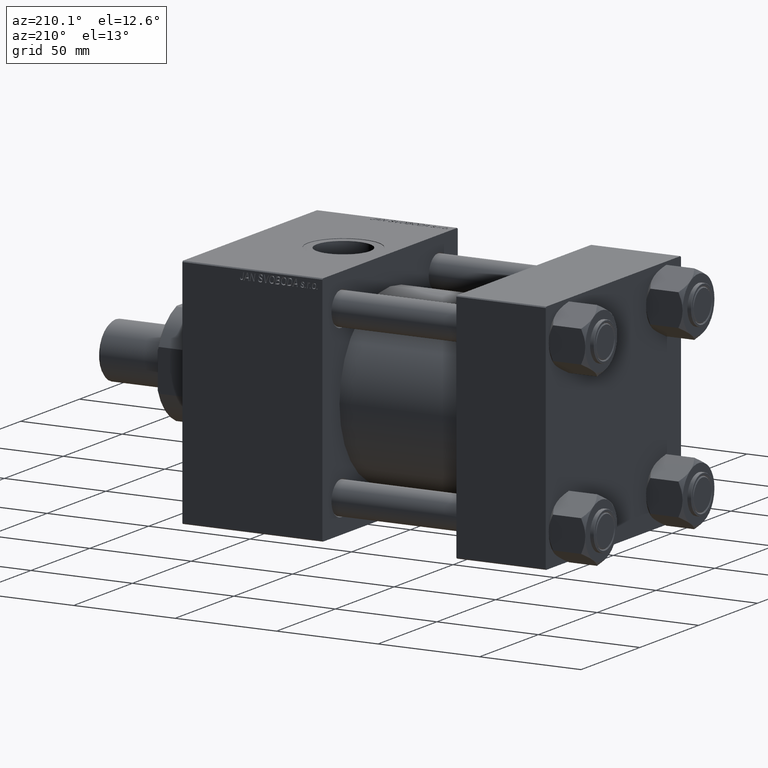
[diagram: clean part render]
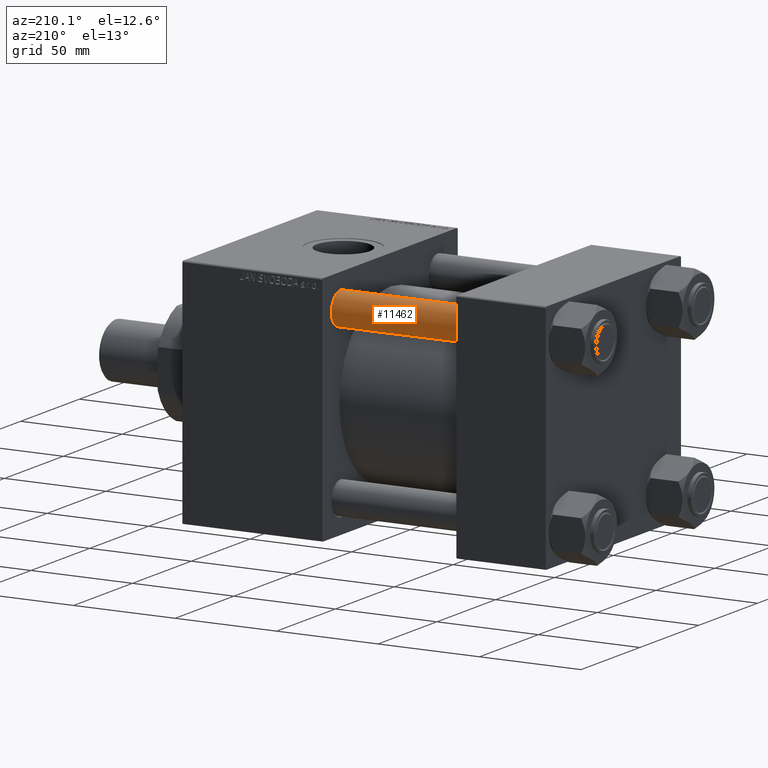
[diagram: same view with one face highlighted and labeled with its STEP entity id]
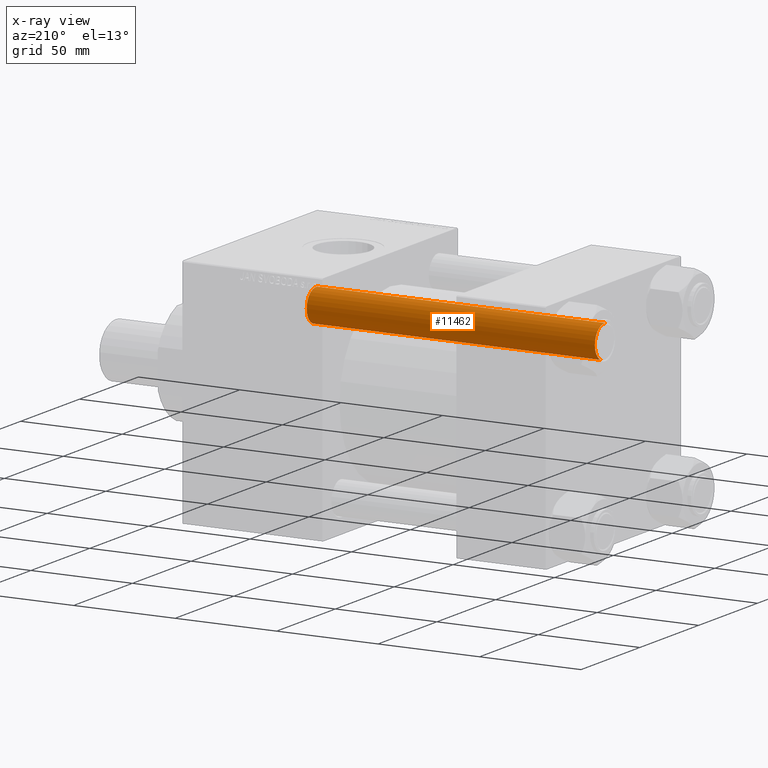
[diagram: x-ray of the same camera — body ghosted, the highlighted face saturated]
A machine part, auxiliary view. The second image highlights one B-rep face of the part: STEP entity #11462.
The next image is the same camera in x-ray: the body ghosted, the highlighted face saturated — about 0% of this face is hidden behind the body in this view.
In plain terms, the highlighted cylindrical surface (edge-blend (fillet) strip) has radius 8 mm, axis along (-1, 0, 0).
Its self-contained STEP definition (entity closure, byte-faithful):
#874 = LINE ( 'NONE', #40022, #41013 ) ;
#2196 = VERTEX_POINT ( 'NONE', #24660 ) ;
#3321 = EDGE_CURVE ( 'NONE', #35190, #48510, #10177, .T. ) ;
#4856 = DIRECTION ( 'NONE',  ( 1.000000000000000000, 0.000000000000000000, 0.000000000000000000 ) ) ;
#6298 = CARTESIAN_POINT ( 'NONE',  ( 8.000000000000000000, 9.797174393178825657E-16, 0.4999999999999726885 ) ) ;
#7971 = ORIENTED_EDGE ( 'NONE', *, *, #46148, .T. ) ;
#9968 = DIRECTION ( 'NONE',  ( -0.000000000000000000, -0.000000000000000000, 1.000000000000000000 ) ) ;
#10099 = ORIENTED_EDGE ( 'NONE', *, *, #41987, .F. ) ;
#10177 = LINE ( 'NONE', #15115, #20892 ) ;
#11462 = ADVANCED_FACE ( 'NONE', ( #38535 ), #45537, .T. ) ;
#12173 = CIRCLE ( 'NONE', #22083, 8.000000000000000000 ) ;
#12837 = CIRCLE ( 'NONE', #34332, 8.000000000000000000 ) ;
#14179 = DIRECTION ( 'NONE',  ( -0.000000000000000000, -0.000000000000000000, -1.000000000000000000 ) ) ;
#14235 = CARTESIAN_POINT ( 'NONE',  ( -8.000000000000000000, 0.000000000000000000, 142.4999999999999716 ) ) ;
#15115 = CARTESIAN_POINT ( 'NONE',  ( 8.000000000000000000, 9.797174393178825657E-16, 143.0000000000000000 ) ) ;
#20427 = DIRECTION ( 'NONE',  ( 0.000000000000000000, 0.000000000000000000, -1.000000000000000000 ) ) ;
#20892 = VECTOR ( 'NONE', #37933, 1000.000000000000000 ) ;
#22083 = AXIS2_PLACEMENT_3D ( 'NONE', #33095, #20427, #4856 ) ;
#24660 = CARTESIAN_POINT ( 'NONE',  ( -8.000000000000000000, 0.000000000000000000, 0.4999999999999726885 ) ) ;
#26000 = CARTESIAN_POINT ( 'NONE',  ( 8.000000000000000000, 9.797174393178825657E-16, 142.4999999999999716 ) ) ;
#26105 = CARTESIAN_POINT ( 'NONE',  ( 0.000000000000000000, 0.000000000000000000, 143.0000000000000000 ) ) ;
#29724 = VERTEX_POINT ( 'NONE', #14235 ) ;
#31019 = ORIENTED_EDGE ( 'NONE', *, *, #3321, .T. ) ;
#32808 = CARTESIAN_POINT ( 'NONE',  ( 0.000000000000000000, 0.000000000000000000, 0.4999999999999726885 ) ) ;
#33095 = CARTESIAN_POINT ( 'NONE',  ( 0.000000000000000000, 0.000000000000000000, 142.4999999999999716 ) ) ;
#33567 = DIRECTION ( 'NONE',  ( 1.000000000000000000, 0.000000000000000000, 0.000000000000000000 ) ) ;
#34332 = AXIS2_PLACEMENT_3D ( 'NONE', #32808, #9968, #33567 ) ;
#35190 = VERTEX_POINT ( 'NONE', #26000 ) ;
#35506 = EDGE_LOOP ( 'NONE', ( #7971, #31019, #50294, #10099 ) ) ;
#36649 = DIRECTION ( 'NONE',  ( -0.000000000000000000, -0.000000000000000000, -1.000000000000000000 ) ) ;
#37933 = DIRECTION ( 'NONE',  ( -0.000000000000000000, -0.000000000000000000, -1.000000000000000000 ) ) ;
#38535 = FACE_OUTER_BOUND ( 'NONE', #35506, .T. ) ;
#40022 = CARTESIAN_POINT ( 'NONE',  ( -8.000000000000000000, 0.000000000000000000, 143.0000000000000000 ) ) ;
#40901 = EDGE_CURVE ( 'NONE', #48510, #2196, #12837, .T. ) ;
#41013 = VECTOR ( 'NONE', #36649, 1000.000000000000000 ) ;
#41987 = EDGE_CURVE ( 'NONE', #29724, #2196, #874, .T. ) ;
#42679 = DIRECTION ( 'NONE',  ( -1.000000000000000000, 0.000000000000000000, 0.000000000000000000 ) ) ;
#45537 = CYLINDRICAL_SURFACE ( 'NONE', #48905, 8.000000000000000000 ) ;
#46148 = EDGE_CURVE ( 'NONE', #29724, #35190, #12173, .T. ) ;
#48510 = VERTEX_POINT ( 'NONE', #6298 ) ;
#48905 = AXIS2_PLACEMENT_3D ( 'NONE', #26105, #14179, #42679 ) ;
#50294 = ORIENTED_EDGE ( 'NONE', *, *, #40901, .T. ) ;